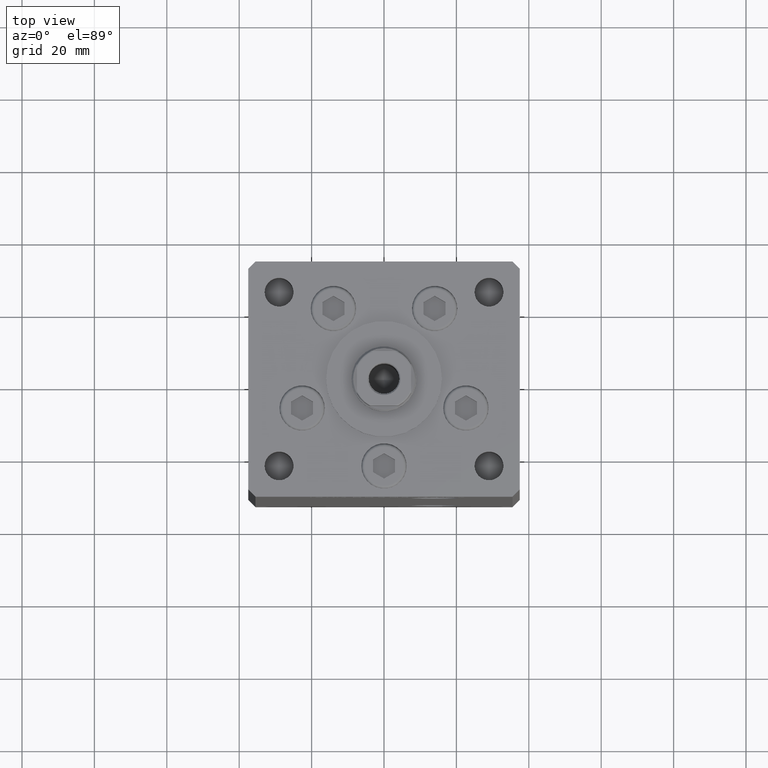
[diagram: clean part render]
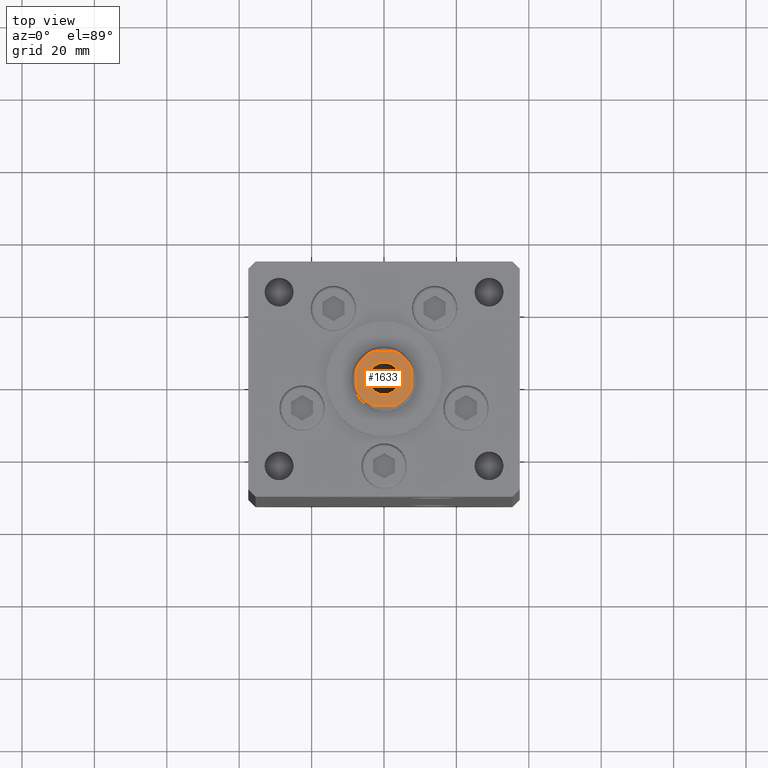
[diagram: same view with one face highlighted and labeled with its STEP entity id]
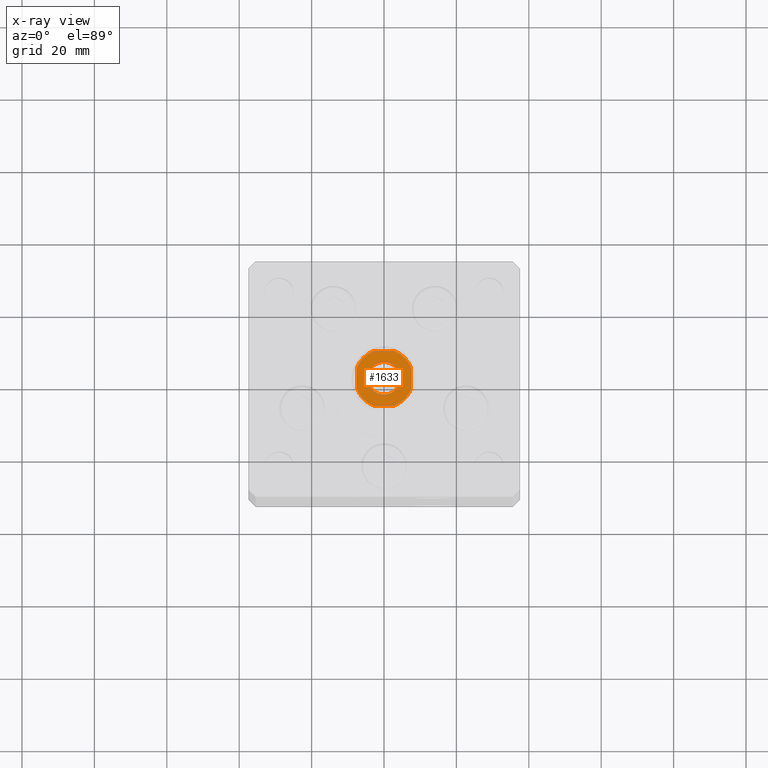
[diagram: x-ray of the same camera — body ghosted, the highlighted face saturated]
A machine part, top view. The second image highlights one B-rep face of the part: STEP entity #1633.
The next image is the same camera in x-ray: the body ghosted, the highlighted face saturated — about 0% of this face is hidden behind the body in this view.
In plain terms, the highlighted planar face has unit normal (0, 0, 1).
Its self-contained STEP definition (entity closure, byte-faithful):
#452 = EDGE_CURVE ( 'NONE', #3792, #24297, #48700, .T. ) ;
#539 = CARTESIAN_POINT ( 'NONE',  ( -4.550000000000012257, 5.572142936120472118E-16, 148.0000000000000284 ) ) ;
#1633 = ADVANCED_FACE ( 'NONE', ( #39754, #23639 ), #34996, .T. ) ;
#1813 = EDGE_CURVE ( 'NONE', #50334, #43083, #49560, .T. ) ;
#3173 = VERTEX_POINT ( 'NONE', #45999 ) ;
#3199 = ORIENTED_EDGE ( 'NONE', *, *, #14302, .T. ) ;
#3350 = VECTOR ( 'NONE', #14918, 1000.000000000000000 ) ;
#3792 = VERTEX_POINT ( 'NONE', #10227 ) ;
#3802 = VERTEX_POINT ( 'NONE', #18679 ) ;
#4067 = EDGE_CURVE ( 'NONE', #24297, #3792, #23509, .T. ) ;
#4447 = CARTESIAN_POINT ( 'NONE',  ( -2.783882181415010315, -7.500000000000000888, 148.0000000000000284 ) ) ;
#5677 = DIRECTION ( 'NONE',  ( -0.000000000000000000, 0.000000000000000000, 1.000000000000000000 ) ) ;
#5700 = DIRECTION ( 'NONE',  ( 1.000000000000000000, 0.000000000000000000, 0.000000000000000000 ) ) ;
#5709 = CARTESIAN_POINT ( 'NONE',  ( 7.500000000000000888, -2.783882181415009427, 148.0000000000000284 ) ) ;
#5902 = EDGE_CURVE ( 'NONE', #14984, #16555, #38827, .T. ) ;
#6157 = CARTESIAN_POINT ( 'NONE',  ( -7.499999999999997335, -7.500000000000000888, 148.0000000000000284 ) ) ;
#6818 = CARTESIAN_POINT ( 'NONE',  ( -7.499999999999998224, 2.783882181415015644, 148.0000000000000284 ) ) ;
#7004 = LINE ( 'NONE', #51074, #3350 ) ;
#8227 = DIRECTION ( 'NONE',  ( -0.000000000000000000, 0.000000000000000000, 1.000000000000000000 ) ) ;
#8276 = AXIS2_PLACEMENT_3D ( 'NONE', #29406, #5677, #14100 ) ;
#8278 = CARTESIAN_POINT ( 'NONE',  ( 2.783882181415008539, -7.500000000000000888, 148.0000000000000284 ) ) ;
#8510 = CIRCLE ( 'NONE', #36295, 8.000000000000000000 ) ;
#8775 = VECTOR ( 'NONE', #33832, 1000.000000000000000 ) ;
#10227 = CARTESIAN_POINT ( 'NONE',  ( 4.550000000000012257, 0.000000000000000000, 148.0000000000000284 ) ) ;
#11345 = VECTOR ( 'NONE', #30090, 1000.000000000000000 ) ;
#12453 = AXIS2_PLACEMENT_3D ( 'NONE', #35606, #51722, #15571 ) ;
#13255 = DIRECTION ( 'NONE',  ( -0.000000000000000000, 0.000000000000000000, 1.000000000000000000 ) ) ;
#14100 = DIRECTION ( 'NONE',  ( 1.000000000000000000, 0.000000000000000000, 0.000000000000000000 ) ) ;
#14302 = EDGE_CURVE ( 'NONE', #3173, #14984, #7004, .T. ) ;
#14532 = ORIENTED_EDGE ( 'NONE', *, *, #1813, .T. ) ;
#14918 = DIRECTION ( 'NONE',  ( -1.000000000000000000, -5.782411586589357392E-17, -0.000000000000000000 ) ) ;
#14984 = VERTEX_POINT ( 'NONE', #42501 ) ;
#15571 = DIRECTION ( 'NONE',  ( 1.000000000000000000, 0.000000000000000000, 0.000000000000000000 ) ) ;
#16555 = VERTEX_POINT ( 'NONE', #6818 ) ;
#17541 = AXIS2_PLACEMENT_3D ( 'NONE', #43196, #27075, #43467 ) ;
#17578 = DIRECTION ( 'NONE',  ( 0.000000000000000000, -0.000000000000000000, -1.000000000000000000 ) ) ;
#18315 = ORIENTED_EDGE ( 'NONE', *, *, #452, .T. ) ;
#18679 = CARTESIAN_POINT ( 'NONE',  ( -7.499999999999998224, -2.783882181415016088, 148.0000000000000284 ) ) ;
#21265 = EDGE_CURVE ( 'NONE', #3802, #50863, #8510, .T. ) ;
#22699 = ORIENTED_EDGE ( 'NONE', *, *, #47017, .T. ) ;
#23509 = CIRCLE ( 'NONE', #46280, 4.550000000000012257 ) ;
#23639 = FACE_OUTER_BOUND ( 'NONE', #37700, .T. ) ;
#23953 = ORIENTED_EDGE ( 'NONE', *, *, #5902, .T. ) ;
#24297 = VERTEX_POINT ( 'NONE', #539 ) ;
#25033 = DIRECTION ( 'NONE',  ( -0.000000000000000000, 0.000000000000000000, 1.000000000000000000 ) ) ;
#27075 = DIRECTION ( 'NONE',  ( -0.000000000000000000, 0.000000000000000000, 1.000000000000000000 ) ) ;
#28807 = CARTESIAN_POINT ( 'NONE',  ( 7.500000000000000888, 2.783882181415007206, 148.0000000000000284 ) ) ;
#29406 = CARTESIAN_POINT ( 'NONE',  ( 0.000000000000000000, 0.000000000000000000, 148.0000000000000284 ) ) ;
#29829 = LINE ( 'NONE', #30345, #11345 ) ;
#30090 = DIRECTION ( 'NONE',  ( 1.156482317317871478E-16, 1.000000000000000000, -0.000000000000000000 ) ) ;
#30345 = CARTESIAN_POINT ( 'NONE',  ( 7.500000000000001776, 7.500000000000000000, 148.0000000000000284 ) ) ;
#30792 = EDGE_CURVE ( 'NONE', #48925, #3173, #39082, .T. ) ;
#32711 = ORIENTED_EDGE ( 'NONE', *, *, #21265, .T. ) ;
#33458 = DIRECTION ( 'NONE',  ( 1.000000000000000000, 0.000000000000000000, 0.000000000000000000 ) ) ;
#33832 = DIRECTION ( 'NONE',  ( 1.000000000000000000, 5.782411586589358625E-17, 0.000000000000000000 ) ) ;
#34849 = AXIS2_PLACEMENT_3D ( 'NONE', #40367, #25033, #33458 ) ;
#34996 = PLANE ( 'NONE',  #17541 ) ;
#35433 = AXIS2_PLACEMENT_3D ( 'NONE', #45212, #13255, #41248 ) ;
#35606 = CARTESIAN_POINT ( 'NONE',  ( 0.000000000000000000, 0.000000000000000000, 148.0000000000000284 ) ) ;
#36295 = AXIS2_PLACEMENT_3D ( 'NONE', #48085, #8227, #44132 ) ;
#37700 = EDGE_LOOP ( 'NONE', ( #48847, #32711, #22699, #14532, #49055, #39301, #3199, #23953 ) ) ;
#38172 = DIRECTION ( 'NONE',  ( 5.782411586589357392E-17, -1.000000000000000000, 0.000000000000000000 ) ) ;
#38827 = CIRCLE ( 'NONE', #35433, 8.000000000000000000 ) ;
#39082 = CIRCLE ( 'NONE', #34849, 8.000000000000000000 ) ;
#39178 = VECTOR ( 'NONE', #38172, 1000.000000000000000 ) ;
#39301 = ORIENTED_EDGE ( 'NONE', *, *, #30792, .T. ) ;
#39754 = FACE_BOUND ( 'NONE', #41727, .T. ) ;
#40367 = CARTESIAN_POINT ( 'NONE',  ( 0.000000000000000000, 0.000000000000000000, 148.0000000000000284 ) ) ;
#41248 = DIRECTION ( 'NONE',  ( 1.000000000000000000, 0.000000000000000000, 0.000000000000000000 ) ) ;
#41727 = EDGE_LOOP ( 'NONE', ( #18315, #44217 ) ) ;
#42501 = CARTESIAN_POINT ( 'NONE',  ( -2.783882181415013868, 7.499999999999999112, 148.0000000000000284 ) ) ;
#43083 = VERTEX_POINT ( 'NONE', #5709 ) ;
#43196 = CARTESIAN_POINT ( 'NONE',  ( 0.000000000000000000, 0.000000000000000000, 148.0000000000000284 ) ) ;
#43467 = DIRECTION ( 'NONE',  ( 1.000000000000000000, 0.000000000000000000, 0.000000000000000000 ) ) ;
#44132 = DIRECTION ( 'NONE',  ( 1.000000000000000000, 0.000000000000000000, 0.000000000000000000 ) ) ;
#44217 = ORIENTED_EDGE ( 'NONE', *, *, #4067, .T. ) ;
#45212 = CARTESIAN_POINT ( 'NONE',  ( 0.000000000000000000, 0.000000000000000000, 148.0000000000000284 ) ) ;
#45402 = LINE ( 'NONE', #46362, #39178 ) ;
#45561 = CARTESIAN_POINT ( 'NONE',  ( 0.000000000000000000, 0.000000000000000000, 148.0000000000000284 ) ) ;
#45999 = CARTESIAN_POINT ( 'NONE',  ( 2.783882181415012980, 7.500000000000000000, 148.0000000000000284 ) ) ;
#46280 = AXIS2_PLACEMENT_3D ( 'NONE', #45561, #17578, #5700 ) ;
#46362 = CARTESIAN_POINT ( 'NONE',  ( -7.499999999999998224, 7.499999999999999112, 148.0000000000000284 ) ) ;
#46799 = LINE ( 'NONE', #6157, #8775 ) ;
#47017 = EDGE_CURVE ( 'NONE', #50863, #50334, #46799, .T. ) ;
#48085 = CARTESIAN_POINT ( 'NONE',  ( 0.000000000000000000, 0.000000000000000000, 148.0000000000000284 ) ) ;
#48700 = CIRCLE ( 'NONE', #12453, 4.550000000000012257 ) ;
#48847 = ORIENTED_EDGE ( 'NONE', *, *, #49898, .T. ) ;
#48925 = VERTEX_POINT ( 'NONE', #28807 ) ;
#49018 = EDGE_CURVE ( 'NONE', #43083, #48925, #29829, .T. ) ;
#49055 = ORIENTED_EDGE ( 'NONE', *, *, #49018, .T. ) ;
#49560 = CIRCLE ( 'NONE', #8276, 8.000000000000000000 ) ;
#49898 = EDGE_CURVE ( 'NONE', #16555, #3802, #45402, .T. ) ;
#50334 = VERTEX_POINT ( 'NONE', #8278 ) ;
#50863 = VERTEX_POINT ( 'NONE', #4447 ) ;
#51074 = CARTESIAN_POINT ( 'NONE',  ( -7.499999999999998224, 7.499999999999999112, 148.0000000000000284 ) ) ;
#51722 = DIRECTION ( 'NONE',  ( 0.000000000000000000, -0.000000000000000000, -1.000000000000000000 ) ) ;